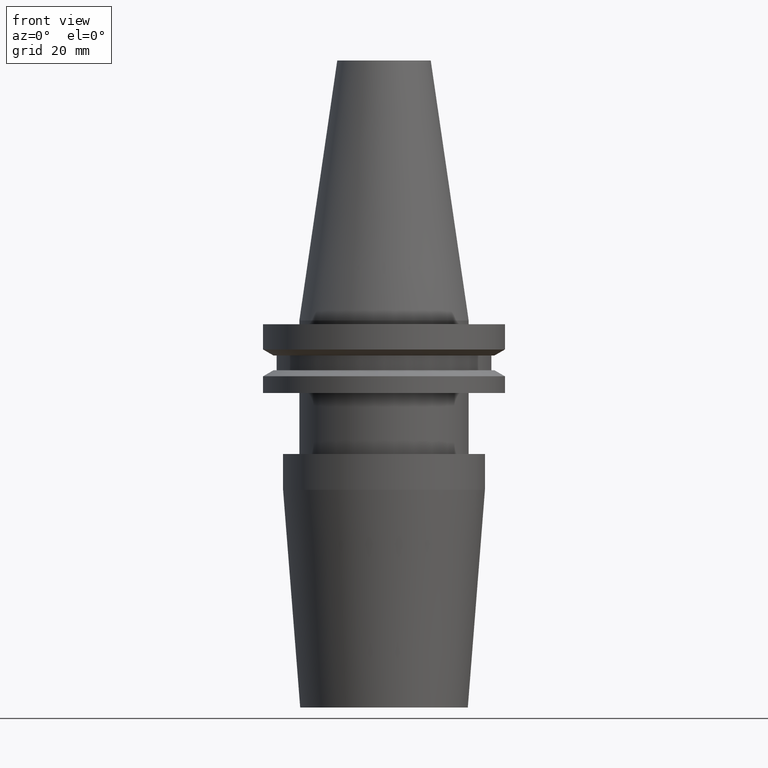
[diagram: clean part render]
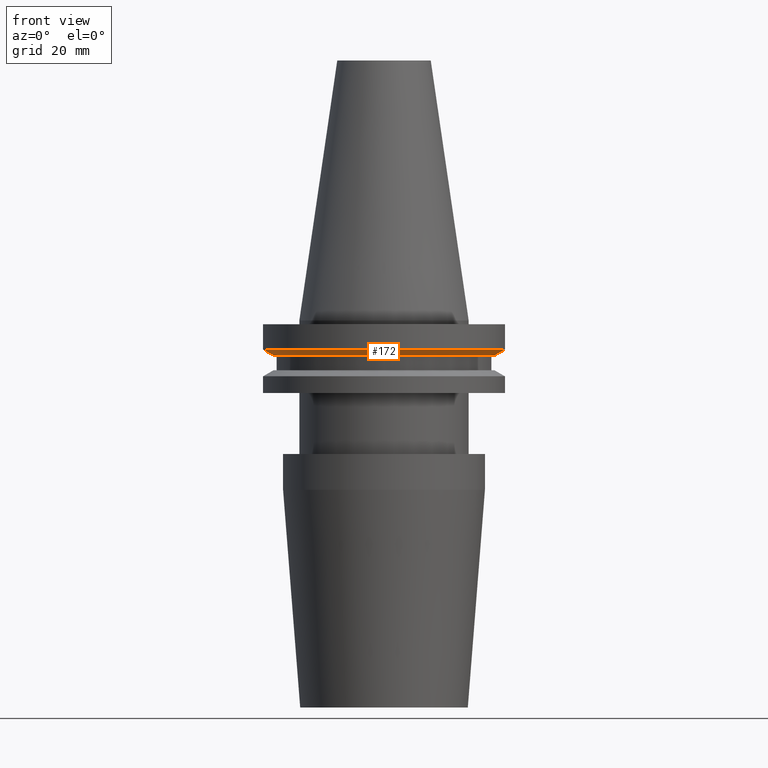
[diagram: same view with one face highlighted and labeled with its STEP entity id]
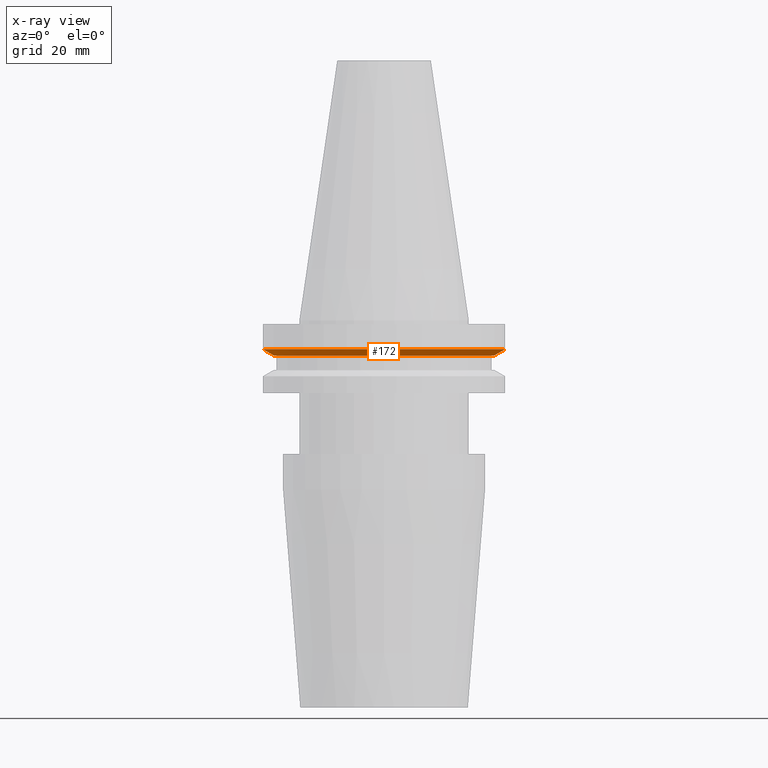
[diagram: x-ray of the same camera — body ghosted, the highlighted face saturated]
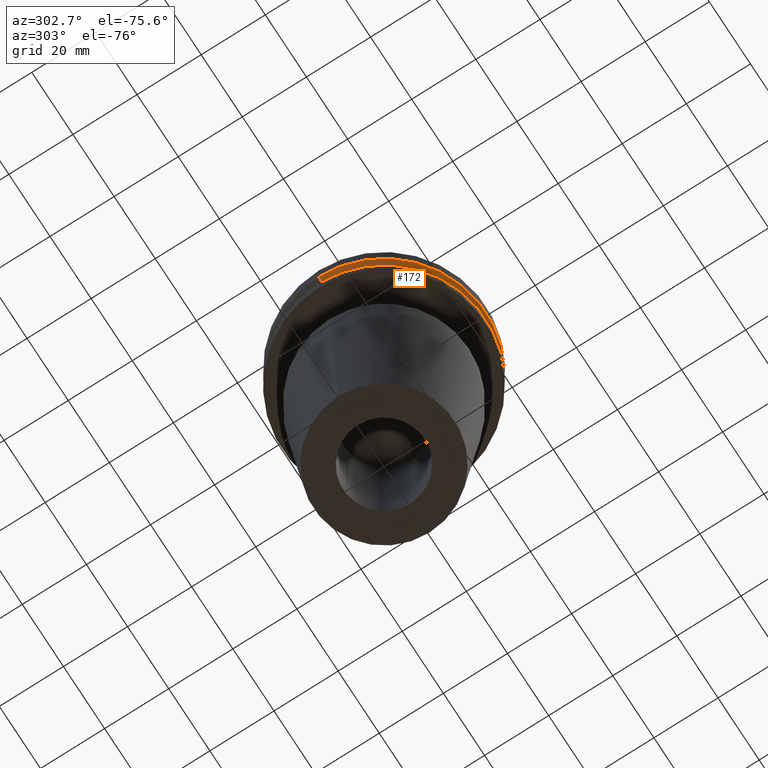
[diagram: same view with one face highlighted and labeled with its STEP entity id]
A machine part, front view. The second image highlights one B-rep face of the part: STEP entity #172.
The next image is the same camera in x-ray: the body ghosted, the highlighted face saturated — about 0% of this face is hidden behind the body in this view.
A second angle (auxiliary view) of the same face is appended — the face is thin or edge-on in the first view.
In plain terms, the highlighted conical surface has half-angle 60 deg.
Its self-contained STEP definition (entity closure, byte-faithful):
#35 = CARTESIAN_POINT ( 'NONE',  ( 0.000000000000000000, 0.000000000000000000, -9.205000000000005400 ) ) ;
#89 = CIRCLE ( 'NONE', #448, 31.75000000000000000 ) ;
#93 = CARTESIAN_POINT ( 'NONE',  ( 0.000000000000000000, 0.000000000000000000, -9.205000000000005400 ) ) ;
#110 = CONICAL_SURFACE ( 'NONE', #706, 28.97919780457007732, 1.047197551196598297 ) ;
#125 = EDGE_CURVE ( 'NONE', #258, #386, #156, .T. ) ;
#156 = CIRCLE ( 'NONE', #745, 28.97919780457007732 ) ;
#172 = ADVANCED_FACE ( 'NONE', ( #689 ), #110, .T. ) ;
#258 = VERTEX_POINT ( 'NONE', #524 ) ;
#260 = CARTESIAN_POINT ( 'NONE',  ( 28.97919780457007732, 0.000000000000000000, -9.205000000000005400 ) ) ;
#305 = DIRECTION ( 'NONE',  ( 1.000000000000000000, 0.000000000000000000, 0.000000000000000000 ) ) ;
#326 = LINE ( 'NONE', #260, #477 ) ;
#333 = DIRECTION ( 'NONE',  ( -0.000000000000000000, -0.000000000000000000, 1.000000000000000000 ) ) ;
#334 = EDGE_CURVE ( 'NONE', #258, #609, #591, .T. ) ;
#343 = DIRECTION ( 'NONE',  ( 1.000000000000000000, 0.000000000000000000, 0.000000000000000000 ) ) ;
#386 = VERTEX_POINT ( 'NONE', #683 ) ;
#403 = CARTESIAN_POINT ( 'NONE',  ( 0.000000000000000000, 0.000000000000000000, -7.605276606597335842 ) ) ;
#448 = AXIS2_PLACEMENT_3D ( 'NONE', #403, #333, #343 ) ;
#453 = ORIENTED_EDGE ( 'NONE', *, *, #724, .F. ) ;
#454 = CARTESIAN_POINT ( 'NONE',  ( 31.75000000000000000, 0.000000000000000000, -7.605276606597335842 ) ) ;
#457 = EDGE_LOOP ( 'NONE', ( #644, #779, #848, #453 ) ) ;
#467 = CARTESIAN_POINT ( 'NONE',  ( -31.75000000000000000, 3.888253587292846476E-15, -7.605276606597335842 ) ) ;
#477 = VECTOR ( 'NONE', #590, 1000.000000000000000 ) ;
#499 = DIRECTION ( 'NONE',  ( -0.000000000000000000, -0.000000000000000000, 1.000000000000000000 ) ) ;
#501 = DIRECTION ( 'NONE',  ( -0.000000000000000000, -0.000000000000000000, 1.000000000000000000 ) ) ;
#524 = CARTESIAN_POINT ( 'NONE',  ( -28.97919780457007732, 3.718590885307660666E-15, -9.205000000000005400 ) ) ;
#533 = VECTOR ( 'NONE', #707, 1000.000000000000000 ) ;
#590 = DIRECTION ( 'NONE',  ( 0.8660254037844389297, 0.000000000000000000, 0.4999999999999995004 ) ) ;
#591 = LINE ( 'NONE', #712, #533 ) ;
#609 = VERTEX_POINT ( 'NONE', #467 ) ;
#644 = ORIENTED_EDGE ( 'NONE', *, *, #334, .F. ) ;
#683 = CARTESIAN_POINT ( 'NONE',  ( 28.97919780457007732, 0.000000000000000000, -9.205000000000005400 ) ) ;
#689 = FACE_OUTER_BOUND ( 'NONE', #457, .T. ) ;
#706 = AXIS2_PLACEMENT_3D ( 'NONE', #93, #501, #305 ) ;
#707 = DIRECTION ( 'NONE',  ( -0.8660254037844389297, 1.060575238724907285E-16, 0.4999999999999995004 ) ) ;
#712 = CARTESIAN_POINT ( 'NONE',  ( -28.97919780457007732, 3.548928183322474856E-15, -9.205000000000005400 ) ) ;
#719 = VERTEX_POINT ( 'NONE', #454 ) ;
#724 = EDGE_CURVE ( 'NONE', #609, #719, #89, .T. ) ;
#745 = AXIS2_PLACEMENT_3D ( 'NONE', #35, #499, #820 ) ;
#777 = EDGE_CURVE ( 'NONE', #386, #719, #326, .T. ) ;
#779 = ORIENTED_EDGE ( 'NONE', *, *, #125, .T. ) ;
#820 = DIRECTION ( 'NONE',  ( 1.000000000000000000, 0.000000000000000000, 0.000000000000000000 ) ) ;
#848 = ORIENTED_EDGE ( 'NONE', *, *, #777, .T. ) ;